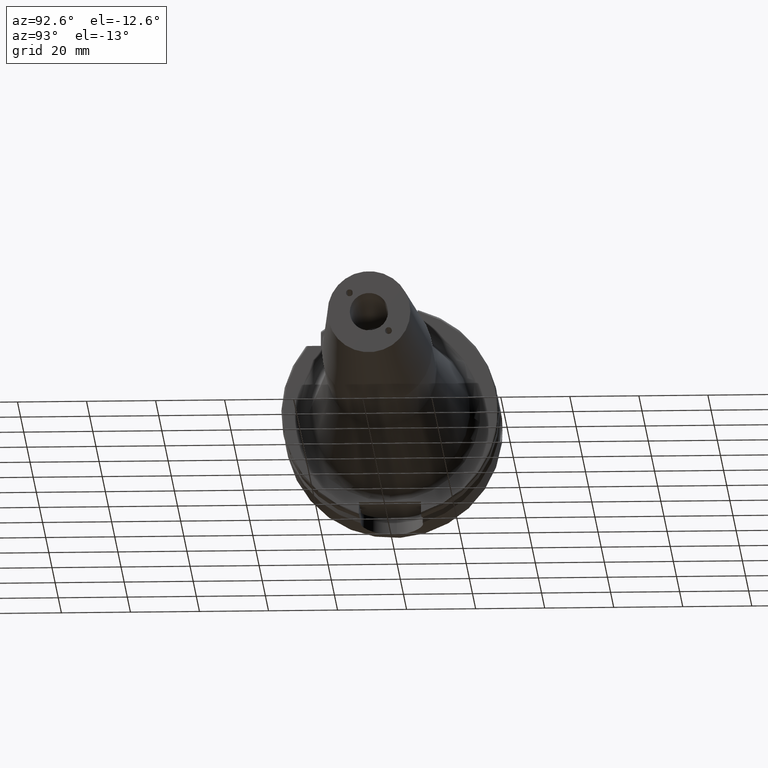
[diagram: clean part render]
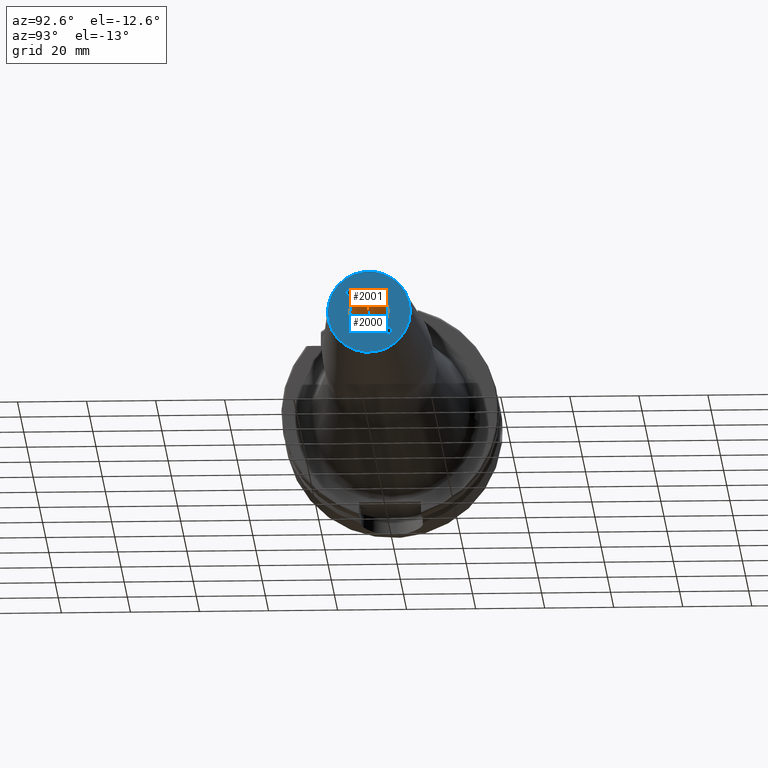
[diagram: same view with the hole feature highlighted: cylindrical wall and planar end face, labeled with their STEP entity ids]
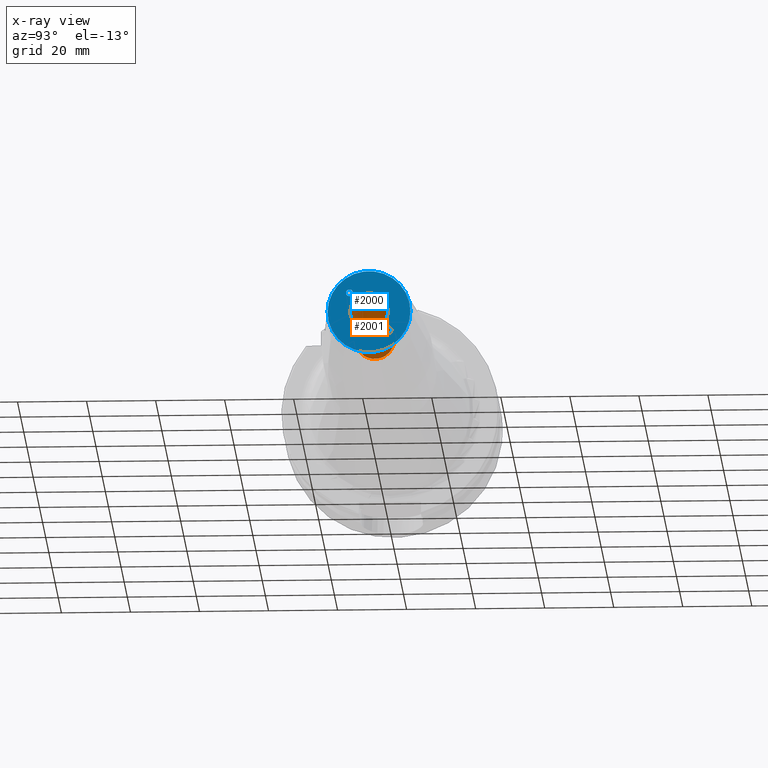
[diagram: x-ray of the same camera — body ghosted, the hole faces saturated]
A machine part, auxiliary view. The highlighted faces form one hole feature of diameter 11.1126 mm: the cylindrical wall (entity #2001, orange) and its adjacent planar end face (entity #2000, blue) — they share a circular edge in the B-rep.
The next image is the same camera in x-ray (body ghosted, the hole faces saturated) — the bore reads through the body.
Wall:
#182=CYLINDRICAL_SURFACE('',#2166,5.55625);
#227=FACE_OUTER_BOUND('',#352,.T.);
#352=EDGE_LOOP('',(#1402,#1403,#1404,#1405));
#484=LINE('',#3088,#595);
#595=VECTOR('',#2478,5.55625);
#706=CIRCLE('',#2165,5.55625);
#707=CIRCLE('',#2167,5.55625);
#841=VERTEX_POINT('',#3084);
#842=VERTEX_POINT('',#3087);
#1057=EDGE_CURVE('',#841,#841,#706,.T.);
#1058=EDGE_CURVE('',#841,#842,#484,.T.);
#1059=EDGE_CURVE('',#842,#842,#707,.T.);
#1402=ORIENTED_EDGE('',*,*,#1057,.T.);
#1403=ORIENTED_EDGE('',*,*,#1058,.T.);
#1404=ORIENTED_EDGE('',*,*,#1059,.F.);
#1405=ORIENTED_EDGE('',*,*,#1058,.F.);
#2001=ADVANCED_FACE('',(#227),#182,.F.);
#2165=AXIS2_PLACEMENT_3D('',#3085,#2474,#2475);
#2166=AXIS2_PLACEMENT_3D('',#3086,#2476,#2477);
#2167=AXIS2_PLACEMENT_3D('',#3089,#2479,#2480);
#2474=DIRECTION('center_axis',(1.,0.,0.));
#2475=DIRECTION('ref_axis',(0.,0.,-1.));
#2476=DIRECTION('center_axis',(1.,0.,0.));
#2477=DIRECTION('ref_axis',(0.,1.,0.));
#2478=DIRECTION('',(-1.,0.,0.));
#2479=DIRECTION('center_axis',(1.,0.,0.));
#2480=DIRECTION('ref_axis',(0.,0.,-1.));
#3084=CARTESIAN_POINT('',(160.,-5.55625,-6.80444377776248E-16));
#3085=CARTESIAN_POINT('Origin',(160.,0.,0.));
#3086=CARTESIAN_POINT('Origin',(141.,0.,0.));
#3087=CARTESIAN_POINT('',(122.,-5.55625,-6.80444377776248E-16));
#3088=CARTESIAN_POINT('',(141.,-5.55625,-6.80444377776248E-16));
#3089=CARTESIAN_POINT('Origin',(122.,0.,0.));
End face:
#91=FACE_BOUND('',#349,.T.);
#92=FACE_BOUND('',#350,.T.);
#93=FACE_BOUND('',#351,.T.);
#104=PLANE('',#2164);
#166=ELLIPSE('',#2132,1.00060954429882,1.);
#167=ELLIPSE('',#2136,1.00060954429882,1.);
#226=FACE_OUTER_BOUND('',#348,.T.);
#348=EDGE_LOOP('',(#1398));
#349=EDGE_LOOP('',(#1399));
#350=EDGE_LOOP('',(#1400));
#351=EDGE_LOOP('',(#1401));
#705=CIRCLE('',#2163,12.);
#706=CIRCLE('',#2165,5.55625);
#813=VERTEX_POINT('',#3005);
#816=VERTEX_POINT('',#3014);
#840=VERTEX_POINT('',#3080);
#841=VERTEX_POINT('',#3084);
#1019=EDGE_CURVE('',#813,#813,#166,.T.);
#1023=EDGE_CURVE('',#816,#816,#167,.T.);
#1055=EDGE_CURVE('',#840,#840,#705,.T.);
#1057=EDGE_CURVE('',#841,#841,#706,.T.);
#1398=ORIENTED_EDGE('',*,*,#1055,.T.);
#1399=ORIENTED_EDGE('',*,*,#1019,.T.);
#1400=ORIENTED_EDGE('',*,*,#1023,.T.);
#1401=ORIENTED_EDGE('',*,*,#1057,.F.);
#2000=ADVANCED_FACE('',(#226,#91,#92,#93),#104,.T.);
#2132=AXIS2_PLACEMENT_3D('',#3006,#2390,#2391);
#2136=AXIS2_PLACEMENT_3D('',#3015,#2400,#2401);
#2163=AXIS2_PLACEMENT_3D('',#3081,#2469,#2470);
#2164=AXIS2_PLACEMENT_3D('',#3083,#2472,#2473);
#2165=AXIS2_PLACEMENT_3D('',#3085,#2474,#2475);
#2390=DIRECTION('center_axis',(-1.,0.,0.));
#2391=DIRECTION('ref_axis',(0.,-0.707106781186477,0.707106781186618));
#2400=DIRECTION('center_axis',(-1.,0.,0.));
#2401=DIRECTION('ref_axis',(0.,0.707106781186477,-0.707106781186618));
#2469=DIRECTION('center_axis',(1.,0.,0.));
#2470=DIRECTION('ref_axis',(0.,0.,-1.));
#2472=DIRECTION('center_axis',(1.,0.,0.));
#2473=DIRECTION('ref_axis',(0.,0.,-1.));
#2474=DIRECTION('center_axis',(1.,0.,0.));
#2475=DIRECTION('ref_axis',(0.,0.,-1.));
#3005=CARTESIAN_POINT('',(160.,-4.65654943091409,5.65624470522185));
#3006=CARTESIAN_POINT('Origin',(160.,-5.65685424949238,5.65685424949238));
#3014=CARTESIAN_POINT('',(160.,4.65654943091409,-5.65624470522185));
#3015=CARTESIAN_POINT('Origin',(160.,5.65685424949238,-5.65685424949238));
#3080=CARTESIAN_POINT('',(160.,-12.,-1.46957615897682E-15));
#3081=CARTESIAN_POINT('Origin',(160.,0.,0.));
#3083=CARTESIAN_POINT('Origin',(160.,5.55625,0.));
#3084=CARTESIAN_POINT('',(160.,-5.55625,-6.80444377776248E-16));
#3085=CARTESIAN_POINT('Origin',(160.,0.,0.));